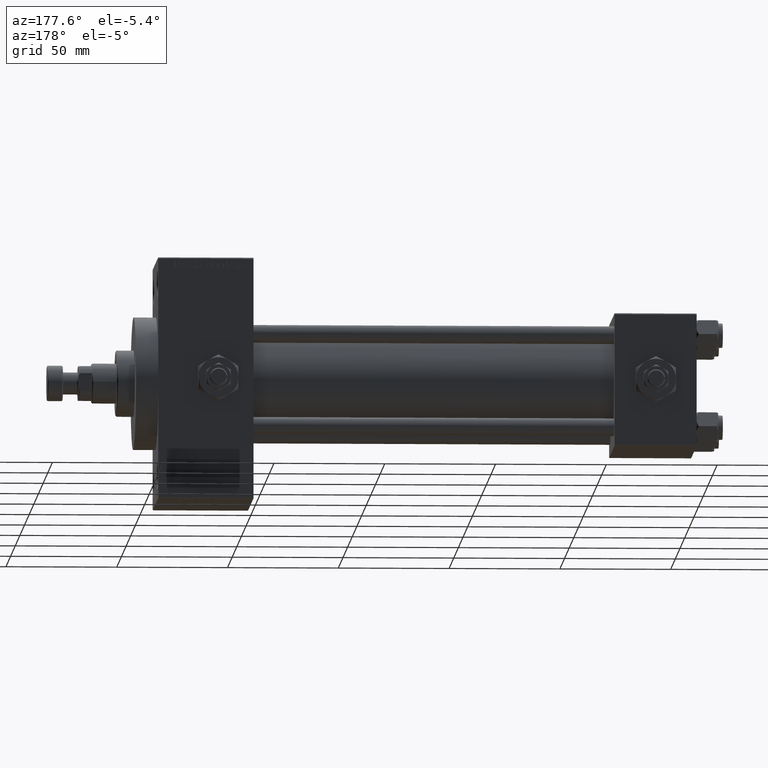
[diagram: clean part render]
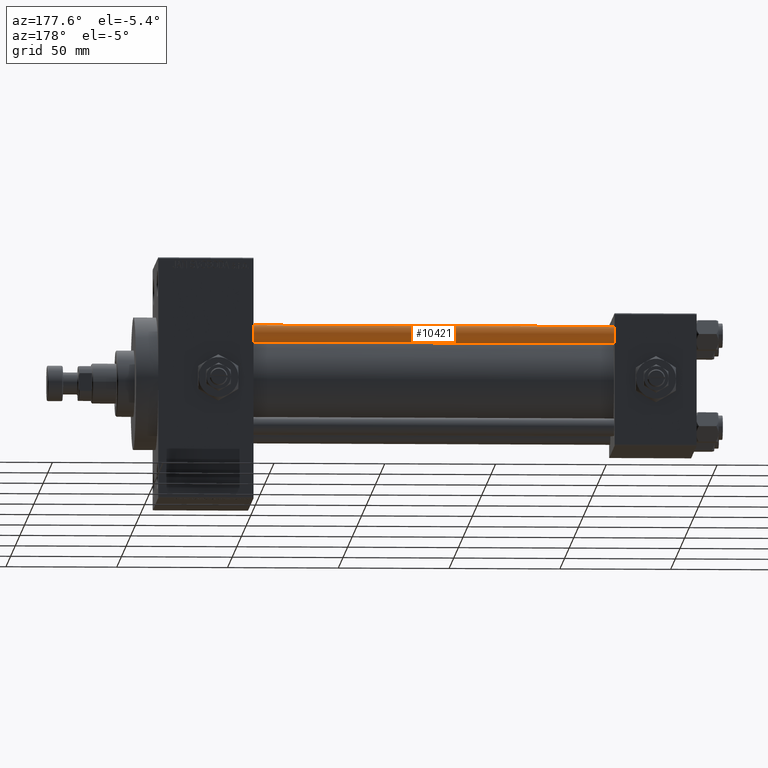
[diagram: same view with one face highlighted and labeled with its STEP entity id]
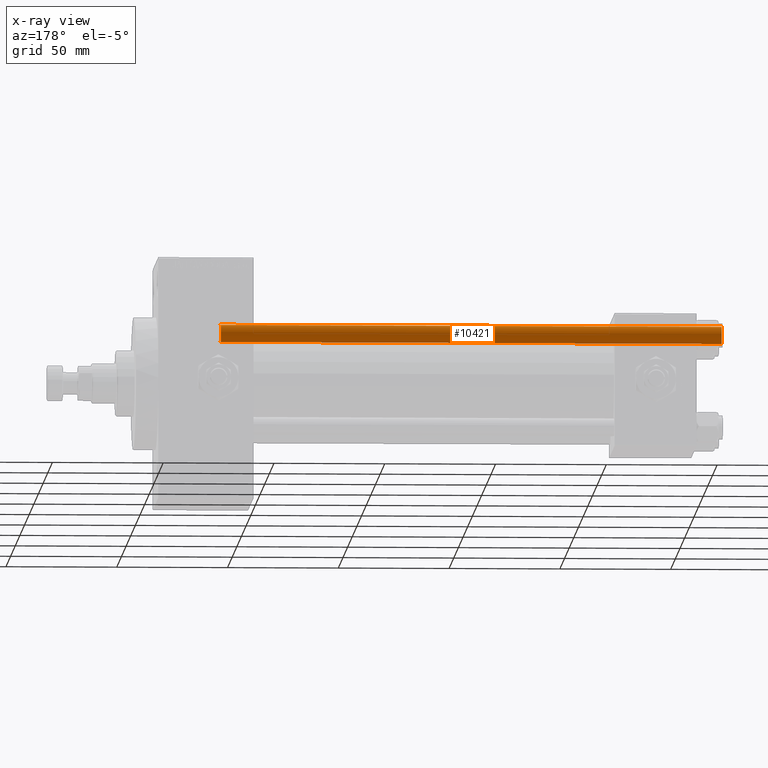
[diagram: x-ray of the same camera — body ghosted, the highlighted face saturated]
A machine part, auxiliary view. The second image highlights one B-rep face of the part: STEP entity #10421.
The next image is the same camera in x-ray: the body ghosted, the highlighted face saturated — about 0% of this face is hidden behind the body in this view.
In plain terms, the highlighted cylindrical surface (edge-blend (fillet) strip) has radius 4 mm, axis along (-1, -0, 0).
Its self-contained STEP definition (entity closure, byte-faithful):
#324 = CIRCLE ( 'NONE', #16422, 4.000000000000000000 ) ;
#1795 = EDGE_CURVE ( 'NONE', #1826, #3428, #29895, .T. ) ;
#1826 = VERTEX_POINT ( 'NONE', #26385 ) ;
#3045 = AXIS2_PLACEMENT_3D ( 'NONE', #15448, #22991, #42350 ) ;
#3117 = DIRECTION ( 'NONE',  ( -0.000000000000000000, -0.000000000000000000, -1.000000000000000000 ) ) ;
#3428 = VERTEX_POINT ( 'NONE', #15723 ) ;
#4294 = AXIS2_PLACEMENT_3D ( 'NONE', #44633, #3117, #41093 ) ;
#5141 = EDGE_CURVE ( 'NONE', #8080, #3428, #324, .T. ) ;
#8080 = VERTEX_POINT ( 'NONE', #9174 ) ;
#8781 = EDGE_CURVE ( 'NONE', #15019, #8080, #21324, .T. ) ;
#9174 = CARTESIAN_POINT ( 'NONE',  ( 4.000000000000000000, 4.898587196589411843E-16, 0.5000000000002224887 ) ) ;
#10421 = ADVANCED_FACE ( 'NONE', ( #14205 ), #11175, .T. ) ;
#11175 = CYLINDRICAL_SURFACE ( 'NONE', #4294, 4.000000000000000000 ) ;
#14205 = FACE_OUTER_BOUND ( 'NONE', #24811, .T. ) ;
#15019 = VERTEX_POINT ( 'NONE', #29076 ) ;
#15448 = CARTESIAN_POINT ( 'NONE',  ( 0.000000000000000000, 0.000000000000000000, 226.5000000000001421 ) ) ;
#15723 = CARTESIAN_POINT ( 'NONE',  ( -4.000000000000000000, 0.000000000000000000, 0.5000000000002224887 ) ) ;
#16422 = AXIS2_PLACEMENT_3D ( 'NONE', #17328, #25355, #18067 ) ;
#17328 = CARTESIAN_POINT ( 'NONE',  ( 0.000000000000000000, 0.000000000000000000, 0.5000000000002224887 ) ) ;
#18067 = DIRECTION ( 'NONE',  ( 1.000000000000000000, 0.000000000000000000, 0.000000000000000000 ) ) ;
#21324 = LINE ( 'NONE', #48466, #29904 ) ;
#21537 = ORIENTED_EDGE ( 'NONE', *, *, #1795, .F. ) ;
#22991 = DIRECTION ( 'NONE',  ( 0.000000000000000000, 0.000000000000000000, -1.000000000000000000 ) ) ;
#24556 = EDGE_CURVE ( 'NONE', #1826, #15019, #27146, .T. ) ;
#24811 = EDGE_LOOP ( 'NONE', ( #40402, #47452, #37310, #21537 ) ) ;
#25355 = DIRECTION ( 'NONE',  ( -0.000000000000000000, -0.000000000000000000, 1.000000000000000000 ) ) ;
#26385 = CARTESIAN_POINT ( 'NONE',  ( -4.000000000000000000, 0.000000000000000000, 226.5000000000001421 ) ) ;
#26852 = VECTOR ( 'NONE', #35212, 1000.000000000000000 ) ;
#27146 = CIRCLE ( 'NONE', #3045, 4.000000000000000000 ) ;
#28854 = DIRECTION ( 'NONE',  ( -0.000000000000000000, -0.000000000000000000, -1.000000000000000000 ) ) ;
#29076 = CARTESIAN_POINT ( 'NONE',  ( 4.000000000000000000, 4.898587196589411843E-16, 226.5000000000001421 ) ) ;
#29895 = LINE ( 'NONE', #37945, #26852 ) ;
#29904 = VECTOR ( 'NONE', #28854, 1000.000000000000000 ) ;
#35212 = DIRECTION ( 'NONE',  ( -0.000000000000000000, -0.000000000000000000, -1.000000000000000000 ) ) ;
#37310 = ORIENTED_EDGE ( 'NONE', *, *, #5141, .T. ) ;
#37945 = CARTESIAN_POINT ( 'NONE',  ( -4.000000000000000000, 0.000000000000000000, 227.0000000000000000 ) ) ;
#40402 = ORIENTED_EDGE ( 'NONE', *, *, #24556, .T. ) ;
#41093 = DIRECTION ( 'NONE',  ( -1.000000000000000000, 0.000000000000000000, 0.000000000000000000 ) ) ;
#42350 = DIRECTION ( 'NONE',  ( 1.000000000000000000, 0.000000000000000000, 0.000000000000000000 ) ) ;
#44633 = CARTESIAN_POINT ( 'NONE',  ( 0.000000000000000000, 0.000000000000000000, 227.0000000000000000 ) ) ;
#47452 = ORIENTED_EDGE ( 'NONE', *, *, #8781, .T. ) ;
#48466 = CARTESIAN_POINT ( 'NONE',  ( 4.000000000000000000, 4.898587196589411843E-16, 227.0000000000000000 ) ) ;